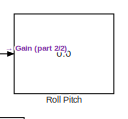
[diagram: root canvas - part 1/2, top center region]
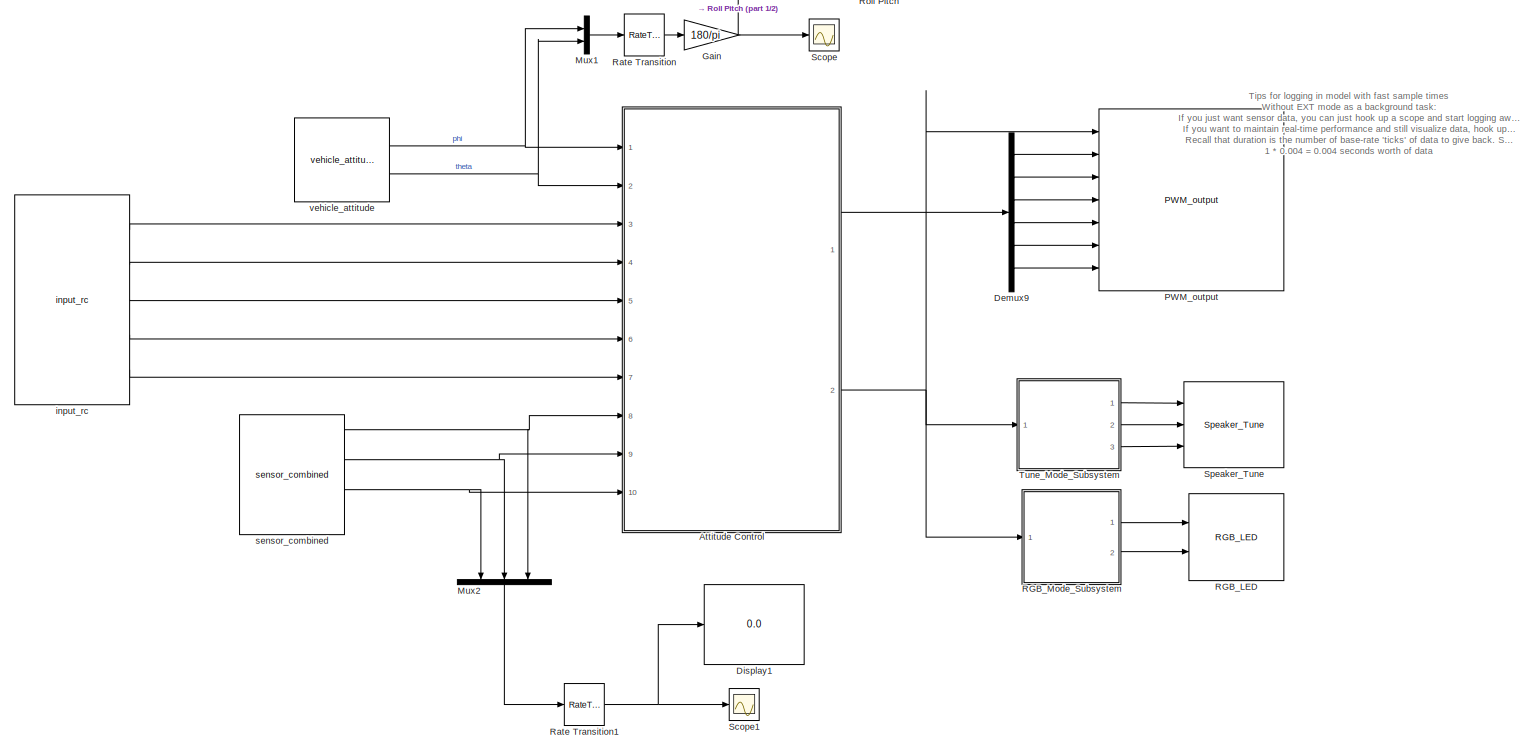
[diagram: root canvas - part 2/2, most of the canvas]
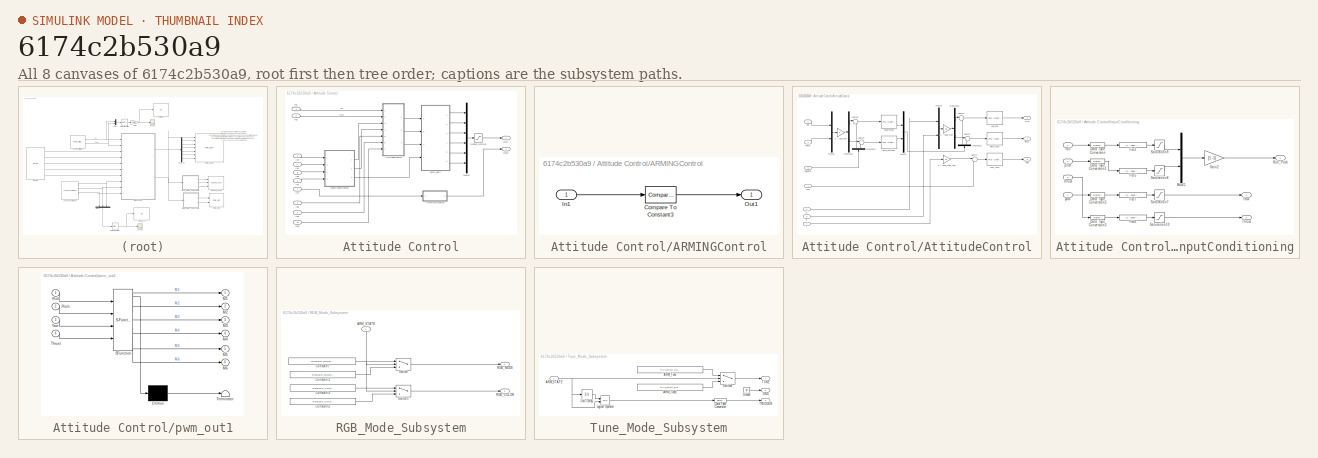
[diagram: thumbnail index - all 8 canvases of the model, root first then tree order]
MODEL slx_6174c2b530a9
KIND model
CONFIG AbsTol = auto
CONFIG EnableMultiTasking = off
CONFIG FixedStep = auto
CONFIG MaxStep = auto
CONFIG MinStep = auto
CONFIG PostLoadFcn = kFactor = 1.2;\n\nKpRollAttitude = 0.630138625117681 / kFactor;\nKiRollAttitude = 0.0552303199591522 / kFactor;\n\nKpPitchAttitude = 0.630138625117681 / kFactor;\nKiPitchAttitude = 0.0552303199591522 / kFactor;\n\nKpRollRate = 1.31533836563383 / kFactor;\nKiRollRate = 0.460338699849681 / kFactor;\n\nKpPitchRate = 1.31533836563383 / kFactor;\nKiPitchRate = 0.460338699849681 / kFactor;\n\nKpYawRate = 1.3153383656...<+57ch>
CONFIG RelTol = 1e-3
CONFIG SampleTimeConstraint = Unconstrained
CONFIG Solver = FixedStepDiscrete
CONFIG SolverName = FixedStepDiscrete
CONFIG StartTime = 0.0
CONFIG StopTime = inf
BLOCK [SubSystem] Attitude Control
  Ports = [10, 2]
  RequestExecContextInheritance = off
  Variant = off
BLOCK [SubSystem] Attitude Control/ARMINGControl
  Ports = [1, 1]
  RequestExecContextInheritance = off
  Variant = off
BLOCK [Reference] Attitude Control/ARMINGControl/Compare To Constant3  REF=simulink/Logic and Bit
Operations/Compare
To Constant
  Ports = [1, 1]
  SourceBlock = simulink/Logic and Bit\nOperations/Compare\nTo Constant
  SourceProductBaseCode = SL
  SourceProductName = Simulink
  SourceType = Compare To Constant
BLOCK [Inport] Attitude Control/ARMINGControl/In1
  IconDisplay = Port number
BLOCK [Outport] Attitude Control/ARMINGControl/Out1
  IconDisplay = Port number
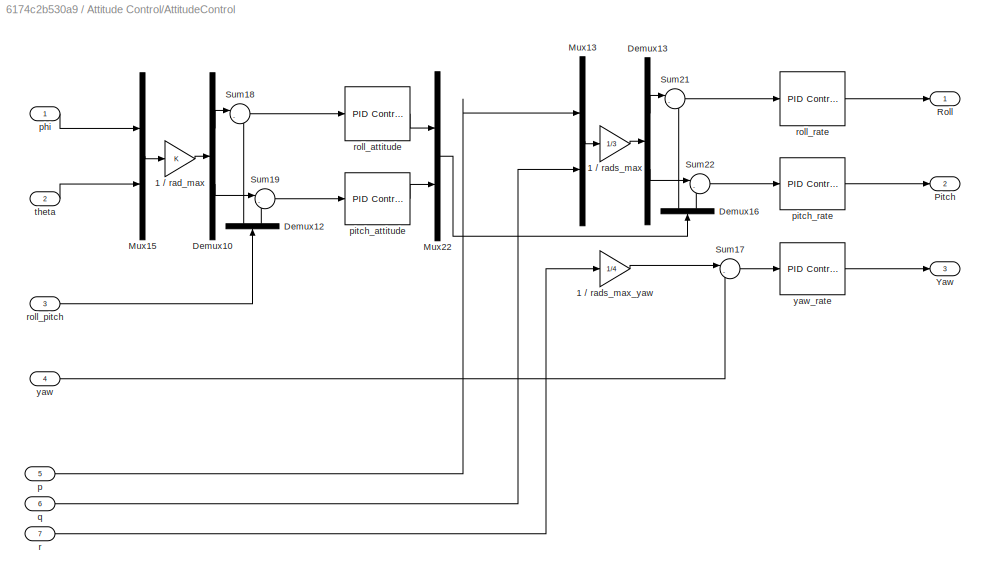
BLOCK [SubSystem] Attitude Control/AttitudeControl
  Ports = [7, 3]
  RequestExecContextInheritance = off
  Variant = off
BLOCK [Gain] Attitude Control/AttitudeControl/1 // rad_max
  OutDataTypeStr = Inherit: Inherit via internal rule
  ParamDataTypeStr = Inherit: Inherit via internal rule
  SaturateOnIntegerOverflow = off
BLOCK [Gain] Attitude Control/AttitudeControl/1 // rads_max
  Gain = 1/3
  OutDataTypeStr = Inherit: Inherit via internal rule
  ParamDataTypeStr = Inherit: Inherit via internal rule
  SaturateOnIntegerOverflow = off
BLOCK [Gain] Attitude Control/AttitudeControl/1 // rads_max_yaw
  Gain = 1/4
  OutDataTypeStr = Inherit: Inherit via internal rule
  ParamDataTypeStr = Inherit: Inherit via internal rule
  SaturateOnIntegerOverflow = off
BLOCK [Demux] Attitude Control/AttitudeControl/Demux10
  DisplayOption = bar
  Outputs = 2
  Ports = [1, 2]
BLOCK [Demux] Attitude Control/AttitudeControl/Demux12
  DisplayOption = bar
  Outputs = 2
  Ports = [1, 2]
BLOCK [Demux] Attitude Control/AttitudeControl/Demux13
  DisplayOption = bar
  Outputs = 2
  Ports = [1, 2]
BLOCK [Demux] Attitude Control/AttitudeControl/Demux16
  DisplayOption = bar
  Outputs = 2
  Ports = [1, 2]
BLOCK [Mux] Attitude Control/AttitudeControl/Mux13
  DisplayOption = bar
  Inputs = 2
  Ports = [2, 1]
BLOCK [Mux] Attitude Control/AttitudeControl/Mux15
  DisplayOption = bar
  Inputs = 2
  Ports = [2, 1]
BLOCK [Mux] Attitude Control/AttitudeControl/Mux22
  DisplayOption = bar
  Inputs = 2
  Ports = [2, 1]
BLOCK [Outport] Attitude Control/AttitudeControl/Pitch
  IconDisplay = Port number
  Port = 2
BLOCK [Outport] Attitude Control/AttitudeControl/Roll
  IconDisplay = Port number
BLOCK [Sum] Attitude Control/AttitudeControl/Sum17
  IconShape = round
  InputSameDT = off
  Inputs = |-+
  OutDataTypeStr = Inherit: Inherit via internal rule
  Ports = [2, 1]
  SaturateOnIntegerOverflow = off
BLOCK [Sum] Attitude Control/AttitudeControl/Sum18
  IconShape = round
  InputSameDT = off
  Inputs = |-+
  OutDataTypeStr = Inherit: Inherit via internal rule
  Ports = [2, 1]
  SaturateOnIntegerOverflow = off
BLOCK [Sum] Attitude Control/AttitudeControl/Sum19
  IconShape = round
  InputSameDT = off
  Inputs = |-+
  OutDataTypeStr = Inherit: Inherit via internal rule
  Ports = [2, 1]
  SaturateOnIntegerOverflow = off
BLOCK [Sum] Attitude Control/AttitudeControl/Sum21
  IconShape = round
  InputSameDT = off
  Inputs = |-+
  OutDataTypeStr = Inherit: Inherit via internal rule
  Ports = [2, 1]
  SaturateOnIntegerOverflow = off
BLOCK [Sum] Attitude Control/AttitudeControl/Sum22
  IconShape = round
  InputSameDT = off
  Inputs = |-+
  OutDataTypeStr = Inherit: Inherit via internal rule
  Ports = [2, 1]
  SaturateOnIntegerOverflow = off
BLOCK [Outport] Attitude Control/AttitudeControl/Yaw
  IconDisplay = Port number
  Port = 3
BLOCK [Inport] Attitude Control/AttitudeControl/p
  IconDisplay = Port number
  Port = 5
BLOCK [Inport] Attitude Control/AttitudeControl/phi
  IconDisplay = Port number
BLOCK [Reference] Attitude Control/AttitudeControl/pitch_attitude  REF=simulink/Continuous/PID Controller
  Ports = [1, 1]
  SourceBlock = simulink/Continuous/PID Controller
  SourceProductBaseCode = SL
  SourceProductName = Simulink
  SourceType = PID 1dof
BLOCK [Reference] Attitude Control/AttitudeControl/pitch_rate  REF=simulink/Continuous/PID Controller
  Ports = [1, 1]
  SourceBlock = simulink/Continuous/PID Controller
  SourceProductBaseCode = SL
  SourceProductName = Simulink
  SourceType = PID 1dof
BLOCK [Inport] Attitude Control/AttitudeControl/q
  IconDisplay = Port number
  Port = 6
BLOCK [Inport] Attitude Control/AttitudeControl/r
  IconDisplay = Port number
  Port = 7
BLOCK [Reference] Attitude Control/AttitudeControl/roll_attitude  REF=simulink/Continuous/PID Controller
  Ports = [1, 1]
  SourceBlock = simulink/Continuous/PID Controller
  SourceProductBaseCode = SL
  SourceProductName = Simulink
  SourceType = PID 1dof
BLOCK [Inport] Attitude Control/AttitudeControl/roll_pitch
  IconDisplay = Port number
  Port = 3
BLOCK [Reference] Attitude Control/AttitudeControl/roll_rate  REF=simulink/Continuous/PID Controller
  Ports = [1, 1]
  SourceBlock = simulink/Continuous/PID Controller
  SourceProductBaseCode = SL
  SourceProductName = Simulink
  SourceType = PID 1dof
BLOCK [Inport] Attitude Control/AttitudeControl/theta
  IconDisplay = Port number
  Port = 2
BLOCK [Inport] Attitude Control/AttitudeControl/yaw
  IconDisplay = Port number
  Port = 4
BLOCK [Reference] Attitude Control/AttitudeControl/yaw_rate  REF=simulink/Continuous/PID Controller
  Ports = [1, 1]
  SourceBlock = simulink/Continuous/PID Controller
  SourceProductBaseCode = SL
  SourceProductName = Simulink
  SourceType = PID 1dof
BLOCK [Inport] Attitude Control/In1
  IconDisplay = Port number
BLOCK [Inport] Attitude Control/In10
  IconDisplay = Port number
  Port = 10
BLOCK [Inport] Attitude Control/In2
  IconDisplay = Port number
  Port = 2
BLOCK [Inport] Attitude Control/In3
  IconDisplay = Port number
  Port = 3
BLOCK [Inport] Attitude Control/In4
  IconDisplay = Port number
  Port = 4
BLOCK [Inport] Attitude Control/In5
  IconDisplay = Port number
  Port = 5
BLOCK [Inport] Attitude Control/In6
  IconDisplay = Port number
  Port = 6
BLOCK [Inport] Attitude Control/In7
  IconDisplay = Port number
  Port = 7
BLOCK [Inport] Attitude Control/In8
  IconDisplay = Port number
  Port = 8
BLOCK [Inport] Attitude Control/In9
  IconDisplay = Port number
  Port = 9
BLOCK [SubSystem] Attitude Control/InputConditioning
  Ports = [4, 3]
  RequestExecContextInheritance = off
  Variant = off
BLOCK [DataTypeConversion] Attitude Control/InputConditioning/Data Type Conversion
  OutDataTypeStr = single
  RndMeth = Floor
  SaturateOnIntegerOverflow = off
BLOCK [DataTypeConversion] Attitude Control/InputConditioning/Data Type Conversion1
  OutDataTypeStr = single
  RndMeth = Floor
  SaturateOnIntegerOverflow = off
BLOCK [DataTypeConversion] Attitude Control/InputConditioning/Data Type Conversion2
  OutDataTypeStr = single
  RndMeth = Floor
  SaturateOnIntegerOverflow = off
BLOCK [DataTypeConversion] Attitude Control/InputConditioning/Data Type Conversion3
  OutDataTypeStr = single
  RndMeth = Floor
  SaturateOnIntegerOverflow = off
BLOCK [Fcn] Attitude Control/InputConditioning/Fcn2
  Expr = (u - 1500) / 500
BLOCK [Fcn] Attitude Control/InputConditioning/Fcn5
  Expr = (u - 1500) / 500
BLOCK [Fcn] Attitude Control/InputConditioning/Fcn6
  Expr = (u - 1000) / 1000
BLOCK [Fcn] Attitude Control/InputConditioning/Fcn7
  Expr = (u - 1500) / 500
BLOCK [Gain] Attitude Control/InputConditioning/Gain2
  Gain = [1 -1]
  OutDataTypeStr = Inherit: Inherit via back propagation
  ParamDataTypeStr = Inherit: Inherit via internal rule
  SaturateOnIntegerOverflow = off
BLOCK [Mux] Attitude Control/InputConditioning/Mux21
  DisplayOption = bar
  Inputs = 2
  Ports = [2, 1]
BLOCK [Outport] Attitude Control/InputConditioning/Roll_Pitch
  IconDisplay = Port number
BLOCK [Saturate] Attitude Control/InputConditioning/Saturation10
  InputPortMap = u0
  LowerLimit = 0
  Ports = [1, 1]
  UpperLimit = 1
BLOCK [Saturate] Attitude Control/InputConditioning/Saturation7
  InputPortMap = u0
  LowerLimit = -1
  Ports = [1, 1]
  UpperLimit = 1
BLOCK [Saturate] Attitude Control/InputConditioning/Saturation8
  InputPortMap = u0
  LowerLimit = -1
  Ports = [1, 1]
  UpperLimit = 1
BLOCK [Saturate] Attitude Control/InputConditioning/Saturation9
  InputPortMap = u0
  LowerLimit = -1
  Ports = [1, 1]
  UpperLimit = 1
BLOCK [Outport] Attitude Control/InputConditioning/Thrust
  IconDisplay = Port number
  Port = 3
BLOCK [Outport] Attitude Control/InputConditioning/Yaw
  IconDisplay = Port number
  Port = 2
BLOCK [Inport] Attitude Control/InputConditioning/pitch
  IconDisplay = Port number
  Port = 2
BLOCK [Inport] Attitude Control/InputConditioning/roll
  IconDisplay = Port number
BLOCK [Inport] Attitude Control/InputConditioning/thrust
  IconDisplay = Port number
  Port = 3
BLOCK [Inport] Attitude Control/InputConditioning/yaw
  IconDisplay = Port number
  Port = 4
BLOCK [Mux] Attitude Control/Mux12
  DisplayOption = bar
  Inputs = 6
  Ports = [6, 1]
BLOCK [Outport] Attitude Control/Out1
  IconDisplay = Port number
BLOCK [Outport] Attitude Control/Out2
  IconDisplay = Port number
  Port = 2
BLOCK [Saturate] Attitude Control/Output_Limits1
  InputPortMap = u0
  LowerLimit = 1000
  Ports = [1, 1]
  UpperLimit = 2000
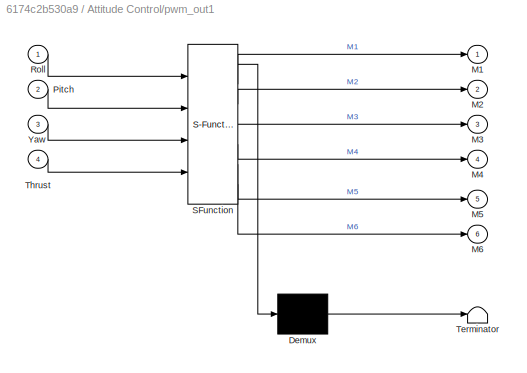
BLOCK [SubSystem] Attitude Control/pwm_out1
  ErrorFcn = Stateflow.Translate.translate
  PermitHierarchicalResolution = ExplicitOnly
  Ports = [4, 6]
  RequestExecContextInheritance = off
  SFBlockType = MATLAB Function
  SystemSampleTime = 0.004
  TreatAsAtomicUnit = on
  Variant = off
BLOCK [Demux] Attitude Control/pwm_out1/ Demux 
  Outputs = 1
  Ports = [1, 1]
BLOCK [S-Function] Attitude Control/pwm_out1/ SFunction 
  EnableBusSupport = off
  FunctionName = sf_sfun
  PortCounts = [4 7]
  Ports = [4, 7]
  SFcnIsStateOwnerBlock = off
  SFunctionDeploymentMode = off
  Tag = Stateflow S-Function px4demo_attitude_system_multi_task 4
BLOCK [Terminator] Attitude Control/pwm_out1/ Terminator 
BLOCK [Outport] Attitude Control/pwm_out1/M1
  IconDisplay = Port number
BLOCK [Outport] Attitude Control/pwm_out1/M2
  IconDisplay = Port number
  Port = 2
BLOCK [Outport] Attitude Control/pwm_out1/M3
  IconDisplay = Port number
  Port = 3
BLOCK [Outport] Attitude Control/pwm_out1/M4
  IconDisplay = Port number
  Port = 4
BLOCK [Outport] Attitude Control/pwm_out1/M5
  IconDisplay = Port number
  Port = 5
BLOCK [Outport] Attitude Control/pwm_out1/M6
  IconDisplay = Port number
  Port = 6
BLOCK [Inport] Attitude Control/pwm_out1/Pitch
  IconDisplay = Port number
  Port = 2
BLOCK [Inport] Attitude Control/pwm_out1/Roll
  IconDisplay = Port number
BLOCK [Inport] Attitude Control/pwm_out1/Thrust
  IconDisplay = Port number
  Port = 4
BLOCK [Inport] Attitude Control/pwm_out1/Yaw
  IconDisplay = Port number
  Port = 3
BLOCK [Demux] Demux9
  DisplayOption = bar
  Outputs = 6
  Ports = [1, 6]
BLOCK [Display] Display1
  Decimation = 1
  ExtModeUploadOption = log
  Ports = [1]
BLOCK [Gain] Gain
  Gain = 180/pi
  OutDataTypeStr = Inherit: Inherit via internal rule
  ParamDataTypeStr = Inherit: Inherit via internal rule
  SaturateOnIntegerOverflow = off
BLOCK [Mux] Mux1
  DisplayOption = bar
  Inputs = 2
  Ports = [2, 1]
BLOCK [Mux] Mux2
  DisplayOption = bar
  Inputs = 3
  Ports = [3, 1]
BLOCK [Reference] PWM_output  REF=pixhawk_slib_sensors_actuators/PWM_output
  Ports = [7]
  SourceBlock = pixhawk_slib_sensors_actuators/PWM_output
  SourceProductName = Pixhawk Target Blocks
  SourceType = PX4_Output_PWM
BLOCK [Reference] RGB_LED  REF=pixhawk_slib_sensors_actuators/RGB_LED
  Ports = [2]
  SourceBlock = pixhawk_slib_sensors_actuators/RGB_LED
  SourceProductName = Pixhawk Target Blocks
  SourceType = PX4_RGBLED - controls the mode and color of the Pixhawk RGB LED
BLOCK [SubSystem] RGB_Mode_Subsystem
  Ports = [1, 2]
  RequestExecContextInheritance = off
  Variant = off
BLOCK [Inport] RGB_Mode_Subsystem/ARM_STATE
  IconDisplay = Port number
BLOCK [Constant] RGB_Mode_Subsystem/Constant
  OutDataTypeStr = Enum: RGBLED_MODE_ENUM
  Value = RGBLED_MODE_ENUM.MODE_BLINK_FAST
BLOCK [Constant] RGB_Mode_Subsystem/Constant1
  OutDataTypeStr = Enum: RGBLED_MODE_ENUM
  Value = RGBLED_MODE_ENUM.MODE_BREATHE
BLOCK [Constant] RGB_Mode_Subsystem/Constant2
  OutDataTypeStr = Enum: RGBLED_COLOR_ENUM
  Value = RGBLED_COLOR_ENUM.COLOR_GREEN
BLOCK [Constant] RGB_Mode_Subsystem/Constant3
  OutDataTypeStr = Enum: RGBLED_COLOR_ENUM
  Value = RGBLED_COLOR_ENUM.COLOR_RED
BLOCK [Outport] RGB_Mode_Subsystem/RGB_COLOR
  IconDisplay = Port number
  Port = 2
BLOCK [Outport] RGB_Mode_Subsystem/RGB_MODE
  IconDisplay = Port number
BLOCK [Switch] RGB_Mode_Subsystem/Switch
  Criteria = u2 ~= 0
  InputSameDT = off
  SampleTime = 1/2
  SaturateOnIntegerOverflow = off
  Threshold = 1500
BLOCK [Switch] RGB_Mode_Subsystem/Switch1
  Criteria = u2 ~= 0
  InputSameDT = off
  SampleTime = 1/2
  SaturateOnIntegerOverflow = off
  Threshold = 1500
BLOCK [RateTransition] Rate Transition
  OutPortSampleTime = 0.04
BLOCK [RateTransition] Rate Transition1
  OutPortSampleTime = 0.04
BLOCK [Display] Roll Pitch
  Decimation = 1
  ExtModeUploadOption = log
  Ports = [1]
BLOCK [Scope] Scope
  ExtModeUploadOption = log
  NumInputPorts = 1
  Ports = [1]
  ScopeSpecificationString = Simulink.scopes.TimeScopeBlockCfg('CurrentConfiguration', extmgr.ConfigurationSet(extmgr.Configuration('Core','General UI',true),extmgr.Configuration('Core','Source UI',true),extmgr.Configuration('Sources','WiredSimulink',true,'DataLogging',true,'DataLoggingSaveFormat','StructureWithTime','DataLoggingDecimation','1','DataLoggingDecimateData',true),extmgr.Configuration('Visuals','Time Domain',true,...<+1674ch>
BLOCK [Scope] Scope1
  ExtModeUploadOption = log
  NumInputPorts = 1
  Ports = [1]
  ScopeSpecificationString = C++SS(StrPVP('Location','[-1866, 404, -1068, 1073]'),StrPVP('Open','off'),MxPVP('AxesTitles',53,'struct(''axes1'',''%<SignalLabel>'')'),MxPVP('ScopeGraphics',56,'struct(''FigureColor'',''[0.501960784313725 0.501960784313725 0.501960784313725]'',''AxesColor'',''[0 0 0]'',''AxesTickColor'',''[1 1 1]'',''LineColors'',''[1 1 0;1 0 1;0 1 1;1 0 0;0 1 0;0 0 1]'',''LineStyles'',''-|-|-|-|-|-'',''LineWidth...<+352ch>
BLOCK [Reference] Speaker_Tune  REF=pixhawk_slib_sensors_actuators/Speaker_Tune
  Ports = [3]
  SourceBlock = pixhawk_slib_sensors_actuators/Speaker_Tune
  SourceProductName = Pixhawk Target Blocks
  SourceType = PX4_Play_Tune - Plays a predefined tune or one based on a "string"
BLOCK [SubSystem] Tune_Mode_Subsystem
  Ports = [1, 3]
  RequestExecContextInheritance = off
  Variant = off
BLOCK [Inport] Tune_Mode_Subsystem/ARM_STATE
  IconDisplay = Port number
BLOCK [Constant] Tune_Mode_Subsystem/ARM_Tune
  OutDataTypeStr = Enum: PX4_TUNE_ENUM
  Value = PX4_TUNE_ENUM.ARMING_WARNING_TUNE
BLOCK [Constant] Tune_Mode_Subsystem/ARM_Tune1
  OutDataTypeStr = Enum: PX4_TUNE_ENUM
  Value = PX4_TUNE_ENUM.NOTIFY_POSITIVE_TUNE
BLOCK [DataTypeConversion] Tune_Mode_Subsystem/Data Type Conversion
  OutDataTypeStr = uint8
  RndMeth = Floor
  SaturateOnIntegerOverflow = off
BLOCK [Outport] Tune_Mode_Subsystem/GND
  IconDisplay = Port number
  Port = 2
BLOCK [Ground] Tune_Mode_Subsystem/Ground
BLOCK [Logic] Tune_Mode_Subsystem/Logical Operator
  AllPortsSameDT = off
  IconShape = distinctive
  Operator = XOR
  OutDataTypeStr = boolean
  Ports = [2, 1]
BLOCK [Switch] Tune_Mode_Subsystem/Switch1
  Criteria = u2 ~= 0
  InputSameDT = off
  SaturateOnIntegerOverflow = off
  Threshold = 1500
BLOCK [Outport] Tune_Mode_Subsystem/TRIGGER
  IconDisplay = Port number
  Port = 3
BLOCK [Outport] Tune_Mode_Subsystem/TUNE
  IconDisplay = Port number
BLOCK [UnitDelay] Tune_Mode_Subsystem/Unit Delay
  InputProcessing = Elements as channels (sample based)
  SampleTime = -1
BLOCK [Reference] input_rc  REF=pixhawk_slib_sensors_actuators/input_rc
  Ports = [0, 5]
  SourceBlock = pixhawk_slib_sensors_actuators/input_rc
  SourceProductName = Pixhawk Target Blocks
  SourceType = PX4_Input_RC
BLOCK [Reference] sensor_combined  REF=pixhawk_slib_sensors_actuators/sensor_combined
  Ports = [0, 3]
  SourceBlock = pixhawk_slib_sensors_actuators/sensor_combined
  SourceProductName = Pixhawk Target Blocks
  SourceType = PX4_Sensor_Combined
BLOCK [Reference] vehicle_attitude  REF=pixhawk_slib_sensors_actuators/vehicle_attitude
  Ports = [0, 2]
  SourceBlock = pixhawk_slib_sensors_actuators/vehicle_attitude
  SourceProductName = Pixhawk Target Blocks
  SourceType = PX4_Vehicle_Attitude
ANNOTATION (root): Tips for logging in model with fast sample times Without EXT mode as a background task: If you just want sensor data, you can just hook up a scope and start logging away, however, keep in mind that you will not get real-time performance. This means that the Simulink timer assosicated with the base-rate ticks will not keep up with real-time. Data coming in from the sensors will stillupdate/react to...<+1859ch>
LINE Attitude Control/ARMINGControl/Compare To Constant3:1 -> Attitude Control/ARMINGControl/Out1:1
LINE Attitude Control/ARMINGControl/In1:1 -> Attitude Control/ARMINGControl/Compare To Constant3:1
LINE Attitude Control/ARMINGControl:1 -> Attitude Control/Out2:1
LINE Attitude Control/AttitudeControl/1 // rad_max:1 -> Attitude Control/AttitudeControl/Demux10:1
LINE Attitude Control/AttitudeControl/1 // rads_max:1 -> Attitude Control/AttitudeControl/Demux13:1
LINE Attitude Control/AttitudeControl/1 // rads_max_yaw:1 -> Attitude Control/AttitudeControl/Sum17:1
LINE Attitude Control/AttitudeControl/Demux10:1 -> Attitude Control/AttitudeControl/Sum18:1
LINE Attitude Control/AttitudeControl/Demux10:2 -> Attitude Control/AttitudeControl/Sum19:1
LINE Attitude Control/AttitudeControl/Demux12:1 -> Attitude Control/AttitudeControl/Sum18:2
LINE Attitude Control/AttitudeControl/Demux12:2 -> Attitude Control/AttitudeControl/Sum19:2
LINE Attitude Control/AttitudeControl/Demux13:1 -> Attitude Control/AttitudeControl/Sum21:1
LINE Attitude Control/AttitudeControl/Demux13:2 -> Attitude Control/AttitudeControl/Sum22:1
LINE Attitude Control/AttitudeControl/Demux16:1 -> Attitude Control/AttitudeControl/Sum21:2
LINE Attitude Control/AttitudeControl/Demux16:2 -> Attitude Control/AttitudeControl/Sum22:2
LINE Attitude Control/AttitudeControl/Mux13:1 -> Attitude Control/AttitudeControl/1 // rads_max:1
LINE Attitude Control/AttitudeControl/Mux15:1 -> Attitude Control/AttitudeControl/1 // rad_max:1
LINE Attitude Control/AttitudeControl/Mux22:1 -> Attitude Control/AttitudeControl/Demux16:1
LINE Attitude Control/AttitudeControl/Sum17:1 -> Attitude Control/AttitudeControl/yaw_rate:1
LINE Attitude Control/AttitudeControl/Sum18:1 -> Attitude Control/AttitudeControl/roll_attitude:1
LINE Attitude Control/AttitudeControl/Sum19:1 -> Attitude Control/AttitudeControl/pitch_attitude:1
LINE Attitude Control/AttitudeControl/Sum21:1 -> Attitude Control/AttitudeControl/roll_rate:1
LINE Attitude Control/AttitudeControl/Sum22:1 -> Attitude Control/AttitudeControl/pitch_rate:1
LINE Attitude Control/AttitudeControl/p:1 -> Attitude Control/AttitudeControl/Mux13:1
LINE Attitude Control/AttitudeControl/phi:1 -> Attitude Control/AttitudeControl/Mux15:1
LINE Attitude Control/AttitudeControl/pitch_attitude:1 -> Attitude Control/AttitudeControl/Mux22:2
LINE Attitude Control/AttitudeControl/pitch_rate:1 -> Attitude Control/AttitudeControl/Pitch:1
LINE Attitude Control/AttitudeControl/q:1 -> Attitude Control/AttitudeControl/Mux13:2
LINE Attitude Control/AttitudeControl/r:1 -> Attitude Control/AttitudeControl/1 // rads_max_yaw:1
LINE Attitude Control/AttitudeControl/roll_attitude:1 -> Attitude Control/AttitudeControl/Mux22:1
LINE Attitude Control/AttitudeControl/roll_pitch:1 -> Attitude Control/AttitudeControl/Demux12:1
LINE Attitude Control/AttitudeControl/roll_rate:1 -> Attitude Control/AttitudeControl/Roll:1
LINE Attitude Control/AttitudeControl/theta:1 -> Attitude Control/AttitudeControl/Mux15:2
LINE Attitude Control/AttitudeControl/yaw:1 -> Attitude Control/AttitudeControl/Sum17:2
LINE Attitude Control/AttitudeControl/yaw_rate:1 -> Attitude Control/AttitudeControl/Yaw:1
LINE Attitude Control/AttitudeControl:1 -> Attitude Control/pwm_out1:1
LINE Attitude Control/AttitudeControl:2 -> Attitude Control/pwm_out1:2
LINE Attitude Control/AttitudeControl:3 -> Attitude Control/pwm_out1:3
LINE Attitude Control/In10:1 -> Attitude Control/AttitudeControl:7
LINE Attitude Control/In1:1 -> Attitude Control/AttitudeControl:1
LINE Attitude Control/In2:1 -> Attitude Control/AttitudeControl:2
LINE Attitude Control/In3:1 -> Attitude Control/InputConditioning:1
LINE Attitude Control/In4:1 -> Attitude Control/InputConditioning:2
LINE Attitude Control/In5:1 -> Attitude Control/InputConditioning:3
LINE Attitude Control/In6:1 -> Attitude Control/InputConditioning:4
LINE Attitude Control/In7:1 -> Attitude Control/ARMINGControl:1
LINE Attitude Control/In8:1 -> Attitude Control/AttitudeControl:5
LINE Attitude Control/In9:1 -> Attitude Control/AttitudeControl:6
LINE Attitude Control/InputConditioning/Data Type Conversion1:1 -> Attitude Control/InputConditioning/Fcn5:1
LINE Attitude Control/InputConditioning/Data Type Conversion2:1 -> Attitude Control/InputConditioning/Fcn7:1
LINE Attitude Control/InputConditioning/Data Type Conversion3:1 -> Attitude Control/InputConditioning/Fcn6:1
LINE Attitude Control/InputConditioning/Data Type Conversion:1 -> Attitude Control/InputConditioning/Fcn2:1
LINE Attitude Control/InputConditioning/Fcn2:1 -> Attitude Control/InputConditioning/Saturation9:1
LINE Attitude Control/InputConditioning/Fcn5:1 -> Attitude Control/InputConditioning/Saturation8:1
LINE Attitude Control/InputConditioning/Fcn6:1 -> Attitude Control/InputConditioning/Saturation10:1
LINE Attitude Control/InputConditioning/Fcn7:1 -> Attitude Control/InputConditioning/Saturation7:1
LINE Attitude Control/InputConditioning/Gain2:1 -> Attitude Control/InputConditioning/Roll_Pitch:1
LINE Attitude Control/InputConditioning/Mux21:1 -> Attitude Control/InputConditioning/Gain2:1
LINE Attitude Control/InputConditioning/Saturation10:1 -> Attitude Control/InputConditioning/Thrust:1
LINE Attitude Control/InputConditioning/Saturation7:1 -> Attitude Control/InputConditioning/Yaw:1
LINE Attitude Control/InputConditioning/Saturation8:1 -> Attitude Control/InputConditioning/Mux21:2
LINE Attitude Control/InputConditioning/Saturation9:1 -> Attitude Control/InputConditioning/Mux21:1
LINE Attitude Control/InputConditioning/pitch:1 -> Attitude Control/InputConditioning/Data Type Conversion1:1
LINE Attitude Control/InputConditioning/roll:1 -> Attitude Control/InputConditioning/Data Type Conversion:1
LINE Attitude Control/InputConditioning/thrust:1 -> Attitude Control/InputConditioning/Data Type Conversion3:1
LINE Attitude Control/InputConditioning/yaw:1 -> Attitude Control/InputConditioning/Data Type Conversion2:1
LINE Attitude Control/InputConditioning:1 -> Attitude Control/AttitudeControl:3
LINE Attitude Control/InputConditioning:2 -> Attitude Control/AttitudeControl:4
LINE Attitude Control/InputConditioning:3 -> Attitude Control/pwm_out1:4
LINE Attitude Control/Mux12:1 -> Attitude Control/Output_Limits1:1
LINE Attitude Control/Output_Limits1:1 -> Attitude Control/Out1:1
LINE Attitude Control/pwm_out1:1 -> Attitude Control/Mux12:1
LINE Attitude Control/pwm_out1:2 -> Attitude Control/Mux12:2
LINE Attitude Control/pwm_out1:3 -> Attitude Control/Mux12:3
LINE Attitude Control/pwm_out1:4 -> Attitude Control/Mux12:4
LINE Attitude Control/pwm_out1:5 -> Attitude Control/Mux12:5
LINE Attitude Control/pwm_out1:6 -> Attitude Control/Mux12:6
LINE Attitude Control:1 -> Demux9:1
NET Attitude Control:2 -> PWM_output:1, RGB_Mode_Subsystem:1, Tune_Mode_Subsystem:1
LINE Demux9:1 -> PWM_output:2
LINE Demux9:2 -> PWM_output:3
LINE Demux9:3 -> PWM_output:4
LINE Demux9:4 -> PWM_output:5
LINE Demux9:5 -> PWM_output:6
LINE Demux9:6 -> PWM_output:7
NET Gain:1 -> Roll Pitch:1, Scope:1
LINE Mux1:1 -> Rate Transition:1
LINE Mux2:1 -> Rate Transition1:1
NET RGB_Mode_Subsystem/ARM_STATE:1 -> RGB_Mode_Subsystem/Switch1:2, RGB_Mode_Subsystem/Switch:2
LINE RGB_Mode_Subsystem/Constant1:1 -> RGB_Mode_Subsystem/Switch:3
LINE RGB_Mode_Subsystem/Constant2:1 -> RGB_Mode_Subsystem/Switch1:3
LINE RGB_Mode_Subsystem/Constant3:1 -> RGB_Mode_Subsystem/Switch1:1
LINE RGB_Mode_Subsystem/Constant:1 -> RGB_Mode_Subsystem/Switch:1
LINE RGB_Mode_Subsystem/Switch1:1 -> RGB_Mode_Subsystem/RGB_COLOR:1
LINE RGB_Mode_Subsystem/Switch:1 -> RGB_Mode_Subsystem/RGB_MODE:1
LINE RGB_Mode_Subsystem:1 -> RGB_LED:1
LINE RGB_Mode_Subsystem:2 -> RGB_LED:2
NET Rate Transition1:1 -> Display1:1, Scope1:1
LINE Rate Transition:1 -> Gain:1
NET Tune_Mode_Subsystem/ARM_STATE:1 -> Tune_Mode_Subsystem/Logical Operator:2, Tune_Mode_Subsystem/Switch1:2, Tune_Mode_Subsystem/Unit Delay:1
LINE Tune_Mode_Subsystem/ARM_Tune1:1 -> Tune_Mode_Subsystem/Switch1:3
LINE Tune_Mode_Subsystem/ARM_Tune:1 -> Tune_Mode_Subsystem/Switch1:1
LINE Tune_Mode_Subsystem/Data Type Conversion:1 -> Tune_Mode_Subsystem/TRIGGER:1
LINE Tune_Mode_Subsystem/Ground:1 -> Tune_Mode_Subsystem/GND:1
LINE Tune_Mode_Subsystem/Logical Operator:1 -> Tune_Mode_Subsystem/Data Type Conversion:1
LINE Tune_Mode_Subsystem/Switch1:1 -> Tune_Mode_Subsystem/TUNE:1
LINE Tune_Mode_Subsystem/Unit Delay:1 -> Tune_Mode_Subsystem/Logical Operator:1
LINE Tune_Mode_Subsystem:1 -> Speaker_Tune:1
LINE Tune_Mode_Subsystem:2 -> Speaker_Tune:2
LINE Tune_Mode_Subsystem:3 -> Speaker_Tune:3
LINE input_rc:1 -> Attitude Control:3
LINE input_rc:2 -> Attitude Control:4
LINE input_rc:3 -> Attitude Control:5
LINE input_rc:4 -> Attitude Control:6
LINE input_rc:5 -> Attitude Control:7
NET sensor_combined:1 -> Attitude Control:8, Mux2:3
NET sensor_combined:2 -> Attitude Control:9, Mux2:2
NET sensor_combined:3 -> Attitude Control:10, Mux2:1
NET vehicle_attitude:1 -> Attitude Control:1, Mux1:1
NET vehicle_attitude:2 -> Attitude Control:2, Mux1:2
note: NET lines group one-source signal fan-out (src -> all destinations, sorted); 1:1 wires keep LINE
CHART Attitude Control/pwm_out1 states=1 transitions=1
  STATE_LABEL 'eML_blk_kernel()'
  STATE_LABEL 'SCRIPT:\nfunction [M1, M2, M3, M4, M5, M6] = motor_mixer(Roll, Pitch, Yaw, Thrust)\n\nidle_PWM = uint16(1000);\n\n% Quad X\n% M1 = ((Roll + Pitch - Yaw) / 2 * Thrust + Thrust) * 1000 + idle_PWM;\n% M2 = ((-Roll + Pitch + Yaw) / 2 * Thrust + Thrust) * 1000 + idle_PWM;\n% M3 = ((-Roll - Pitch - Yaw) / 2 * Thrust + Thrust) * 1000 + idle_PWM;\n% M4 = ((Roll - Pitch + Yaw) / 2 * Thrust + Thrust) * 1000 + idle_P...<+1925ch>'
